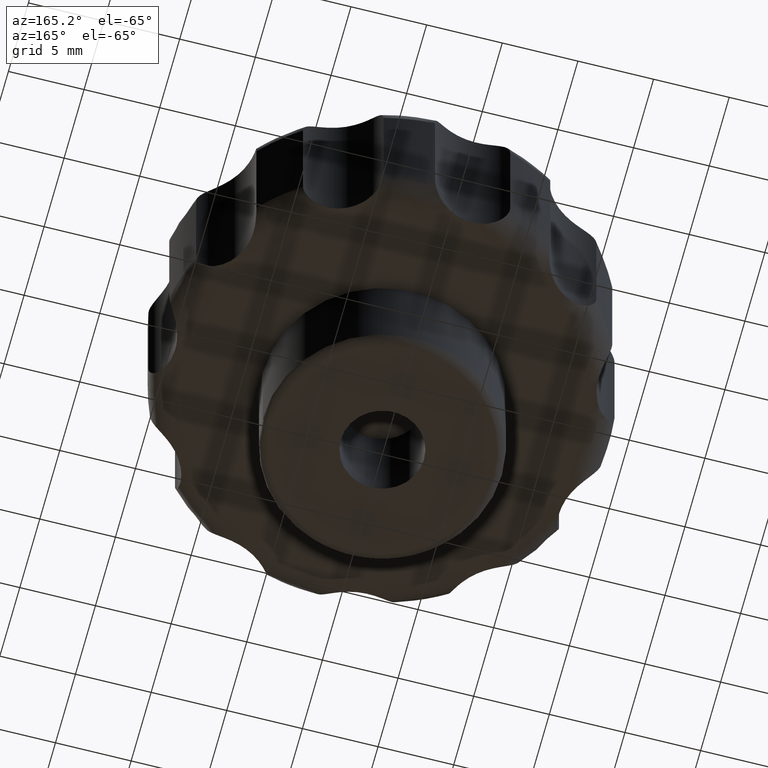
[diagram: clean part render]
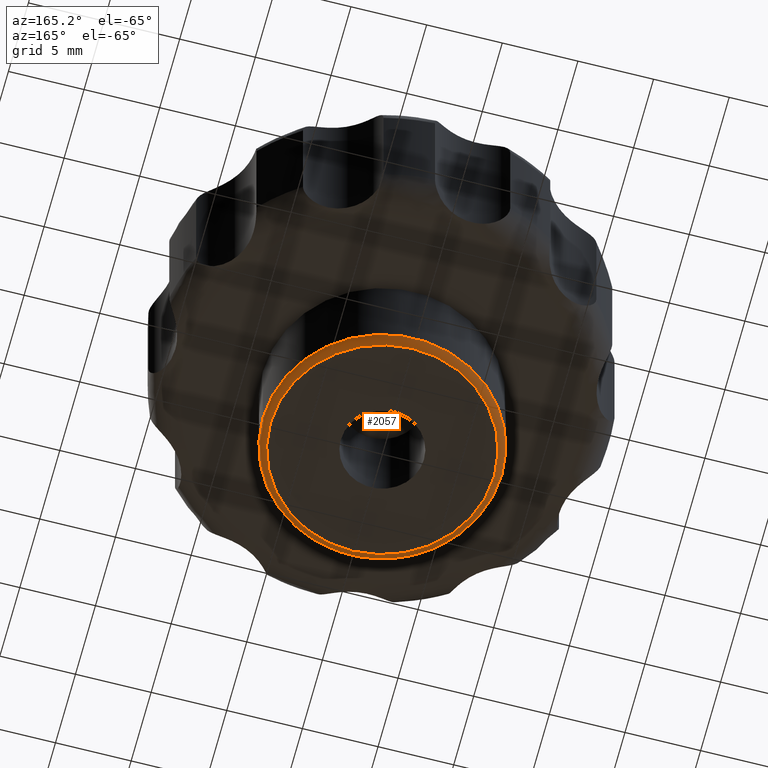
[diagram: same view with one face highlighted and labeled with its STEP entity id]
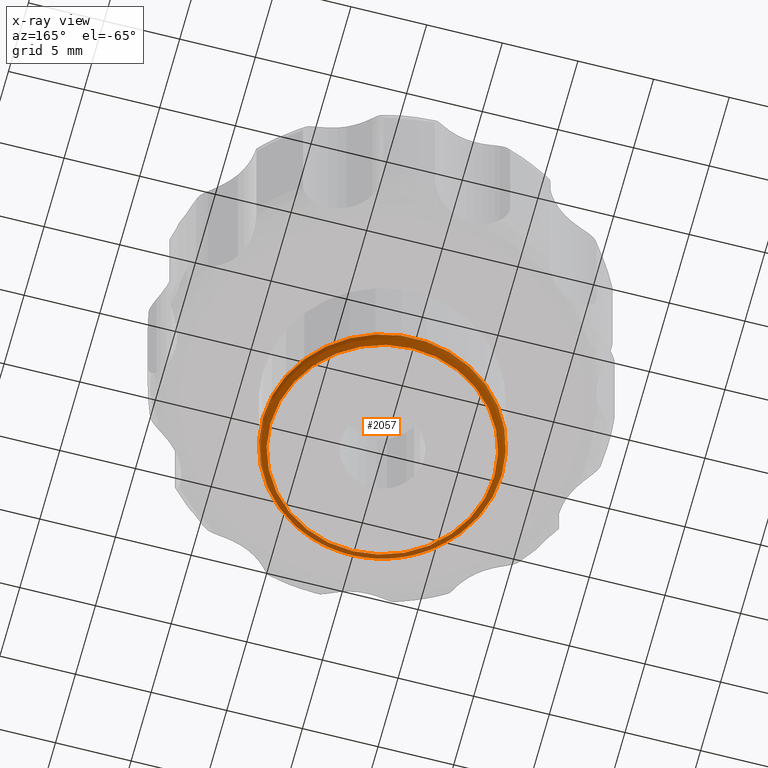
[diagram: x-ray of the same camera — body ghosted, the highlighted face saturated]
A machine part, auxiliary view. The second image highlights one B-rep face of the part: STEP entity #2057.
The next image is the same camera in x-ray: the body ghosted, the highlighted face saturated — about 0% of this face is hidden behind the body in this view.
In plain terms, the highlighted face is a freeform B-spline surface patch.
Its self-contained STEP definition (entity closure, byte-faithful):
#1737=CARTESIAN_POINT('',(7.899999999999999,0.0,-7.0));
#1738=VERTEX_POINT('',#1737);
#1745=CARTESIAN_POINT('',(-7.900000000000000,0.0,-7.0));
#1746=VERTEX_POINT('',#1745);
#1747=CARTESIAN_POINT('',(0.0,0.0,-7.0));
#1748=DIRECTION('',(0.0,0.0,-1.0));
#1749=DIRECTION('',(1.0,0.0,0.0));
#1750=AXIS2_PLACEMENT_3D('',#1747,#1748,#1749);
#1751=CIRCLE('',#1750,7.900000000000000);
#1752=EDGE_CURVE('',#1746,#1738,#1751,.T.);
#1754=CARTESIAN_POINT('',(0.0,0.0,-7.0));
#1755=DIRECTION('',(0.0,0.0,-1.0));
#1756=DIRECTION('',(1.0,0.0,0.0));
#1757=AXIS2_PLACEMENT_3D('',#1754,#1755,#1756);
#1758=CIRCLE('',#1757,7.900000000000000);
#1759=EDGE_CURVE('',#1738,#1746,#1758,.T.);
#1770=CARTESIAN_POINT('',(7.399999999999999,0.0,-7.500000000000000));
#1771=VERTEX_POINT('',#1770);
#1772=CARTESIAN_POINT('',(-7.400000000000000,0.0,-7.500000000000000));
#1773=VERTEX_POINT('',#1772);
#1774=CARTESIAN_POINT('',(0.0,0.0,-7.500000000000000));
#1775=DIRECTION('',(0.0,0.0,-1.0));
#1776=DIRECTION('',(1.0,0.0,0.0));
#1777=AXIS2_PLACEMENT_3D('',#1774,#1775,#1776);
#1778=CIRCLE('',#1777,7.400000000000000);
#1779=EDGE_CURVE('',#1771,#1773,#1778,.T.);
#1781=CARTESIAN_POINT('',(0.0,0.0,-7.500000000000000));
#1782=DIRECTION('',(0.0,0.0,-1.0));
#1783=DIRECTION('',(1.0,0.0,0.0));
#1784=AXIS2_PLACEMENT_3D('',#1781,#1782,#1783);
#1785=CIRCLE('',#1784,7.400000000000000);
#1786=EDGE_CURVE('',#1773,#1771,#1785,.T.);
#1811=CARTESIAN_POINT('',(7.400000000000000,0.0,-7.500000000000000));
#1812=CARTESIAN_POINT('',(7.465030107338710,0.0,-7.500000000000000));
#1813=CARTESIAN_POINT('',(7.596513908671637,0.0,-7.473980611942110));
#1814=CARTESIAN_POINT('',(7.762706455736474,0.0,-7.362706455736474));
#1815=CARTESIAN_POINT('',(7.873980611942111,0.0,-7.196513908671638));
#1816=CARTESIAN_POINT('',(7.900000000000000,0.0,-7.065030107338710));
#1817=CARTESIAN_POINT('',(7.900000000000000,0.0,-7.0));
#1818=CARTESIAN_POINT('',(7.400000000000000,-0.483551225625832,-7.500000000000000));
#1819=CARTESIAN_POINT('',(7.465030107338710,-0.487800602396942,-7.500000000000000));
#1820=CARTESIAN_POINT('',(7.596513908671637,-0.496392379867818,-7.473980611942110));
#1821=CARTESIAN_POINT('',(7.762706455736474,-0.507252192006072,-7.362706455736474));
#1822=CARTESIAN_POINT('',(7.873980611942111,-0.514523375061980,-7.196513908671638));
#1823=CARTESIAN_POINT('',(7.900000000000000,-0.516223605735686,-7.065030107338710));
#1824=CARTESIAN_POINT('',(7.900000000000000,-0.516223605735686,-7.0));
#1825=CARTESIAN_POINT('',(7.304596331744101,-1.453333589229137,-7.500000000000000));
#1826=CARTESIAN_POINT('',(7.368788045733190,-1.466105270216505,-7.500000000000000));
#1827=CARTESIAN_POINT('',(7.498576706935928,-1.491928219529569,-7.473980611942109));
#1828=CARTESIAN_POINT('',(7.662626635267414,-1.524567842628065,-7.362706455736474));
#1829=CARTESIAN_POINT('',(7.772466201921155,-1.546421689766820,-7.196513908671637));
#1830=CARTESIAN_POINT('',(7.798150137943026,-1.551531804717592,-7.065030107338709));
#1831=CARTESIAN_POINT('',(7.798150137943026,-1.551531804717592,-7.0));
#1832=CARTESIAN_POINT('',(6.880779288799079,-2.850015896775366,-7.499999999999998));
#1833=CARTESIAN_POINT('',(6.941246561194291,-2.875061415651627,-7.499999999999998));
#1834=CARTESIAN_POINT('',(7.063504806738100,-2.925700729701263,-7.473980611942110));
#1835=CARTESIAN_POINT('',(7.218036460224115,-2.989707675790500,-7.362706455736472));
#1836=CARTESIAN_POINT('',(7.321503069602264,-3.032563502018384,-7.196513908671637));
#1837=CARTESIAN_POINT('',(7.345696808312531,-3.042584538449377,-7.065030107338709));
#1838=CARTESIAN_POINT('',(7.345696808312531,-3.042584538449377,-7.0));
#1839=CARTESIAN_POINT('',(6.192537756560713,-4.137747220679383,-7.500000000000000));
#1840=CARTESIAN_POINT('',(6.246956863994248,-4.174109132287658,-7.500000000000000));
#1841=CARTESIAN_POINT('',(6.356986378065910,-4.247628961143018,-7.473980611942110));
#1842=CARTESIAN_POINT('',(6.496061191925096,-4.340556359753176,-7.362706455736473));
#1843=CARTESIAN_POINT('',(6.589178680253863,-4.402775863884707,-7.196513908671637));
#1844=CARTESIAN_POINT('',(6.610952469841842,-4.417324735590152,-7.065030107338711));
#1845=CARTESIAN_POINT('',(6.610952469841842,-4.417324735590152,-7.0));
#1846=CARTESIAN_POINT('',(5.266320471191071,-5.266313566577439,-7.500000000000000));
#1847=CARTESIAN_POINT('',(5.312600117883180,-5.312593152592822,-7.500000000000000));
#1848=CARTESIAN_POINT('',(5.406172527962858,-5.406165439990765,-7.473980611942110));
#1849=CARTESIAN_POINT('',(5.524445935093522,-5.524438692054495,-7.362706455736474));
#1850=CARTESIAN_POINT('',(5.603635849517883,-5.603628502653845,-7.196513908671639));
#1851=CARTESIAN_POINT('',(5.622152935460738,-5.622145564319159,-7.065030107338710));
#1852=CARTESIAN_POINT('',(5.622152935460738,-5.622145564319159,-6.999999999999999));
#1853=CARTESIAN_POINT('',(4.137721443357715,-6.192539597693564,-7.500000000000000));
#1854=CARTESIAN_POINT('',(4.174083128438693,-6.246958721306703,-7.500000000000000));
#1855=CARTESIAN_POINT('',(4.247602499280508,-6.356988268091763,-7.473980611942110));
#1856=CARTESIAN_POINT('',(4.340529318971917,-6.496063123299940,-7.362706455736473));
#1857=CARTESIAN_POINT('',(4.402748435488620,-6.589180639313916,-7.196513908671638));
#1858=CARTESIAN_POINT('',(4.417297216557562,-6.610954435375561,-7.065030107338711));
#1859=CARTESIAN_POINT('',(4.417297216557562,-6.610954435375561,-7.0));
#1860=CARTESIAN_POINT('',(2.850112101448407,-6.880778828881310,-7.500000000000001));
#1861=CARTESIAN_POINT('',(2.875158465757129,-6.941246097234831,-7.500000000000001));
#1862=CARTESIAN_POINT('',(2.925799489179214,-7.063504334606784,-7.473980611942110));
#1863=CARTESIAN_POINT('',(2.989808595876513,-7.218035977763758,-7.362706455736474));
#1864=CARTESIAN_POINT('',(3.032665868738695,-7.321502580226100,-7.196513908671637));
#1865=CARTESIAN_POINT('',(3.042687243438164,-7.345696317319236,-7.065030107338710));
#1866=CARTESIAN_POINT('',(3.042687243438164,-7.345696317319236,-7.0));
#1867=CARTESIAN_POINT('',(1.452974547858642,-7.304596330282338,-7.499999999999998));
#1868=CARTESIAN_POINT('',(1.465743073643461,-7.368788044258581,-7.499999999999998));
#1869=CARTESIAN_POINT('',(1.491559643480278,-7.498576705435347,-7.473980611942111));
#1870=CARTESIAN_POINT('',(1.524191203065279,-7.662626633734004,-7.362706455736475));
#1871=CARTESIAN_POINT('',(1.546039651281662,-7.772466200365764,-7.196513908671639));
#1872=CARTESIAN_POINT('',(1.551148503795036,-7.798150136382496,-7.065030107338711));
#1873=CARTESIAN_POINT('',(1.551148503795036,-7.798150136382496,-7.0));
#1874=CARTESIAN_POINT('',(4.633132E-009,-7.447702299892771,-7.500000000000004));
#1875=CARTESIAN_POINT('',(4.673847E-009,-7.513151607999365,-7.500000000000004));
#1876=CARTESIAN_POINT('',(4.756169E-009,-7.645482987673133,-7.473980611942112));
#1877=CARTESIAN_POINT('',(4.860222E-009,-7.812746854565003,-7.362706455736475));
#1878=CARTESIAN_POINT('',(4.929891E-009,-7.924738312550317,-7.196513908671639));
#1879=CARTESIAN_POINT('',(4.946181E-009,-7.950925428263904,-7.065030107338711));
#1880=CARTESIAN_POINT('',(4.946181E-009,-7.950925428263904,-7.0));
#1881=CARTESIAN_POINT('',(-1.452974566391169,-7.304594470146582,-7.500000000000000));
#1882=CARTESIAN_POINT('',(-1.465743092338849,-7.368786167776225,-7.500000000000000));
#1883=CARTESIAN_POINT('',(-1.491559662504954,-7.498574795901949,-7.473980611942110));
#1884=CARTESIAN_POINT('',(-1.524191222506166,-7.662624682424838,-7.362706455736472));
#1885=CARTESIAN_POINT('',(-1.546039671001225,-7.772464221085645,-7.196513908671637));
#1886=CARTESIAN_POINT('',(-1.551148523579762,-7.798148150561893,-7.065030107338710));
#1887=CARTESIAN_POINT('',(-1.551148523579762,-7.798148150561893,-6.999999999999999));
#1888=CARTESIAN_POINT('',(-2.850112036584549,-6.880786269424332,-7.500000000000000));
#1889=CARTESIAN_POINT('',(-2.875158400323256,-6.941253603164249,-7.500000000000000));
#1890=CARTESIAN_POINT('',(-2.925799422592832,-7.063511972740376,-7.473980611942109));
#1891=CARTESIAN_POINT('',(-2.989808527833391,-7.218043783000428,-7.362706455736473));
#1892=CARTESIAN_POINT('',(-3.032665799720213,-7.321510497346575,-7.196513908671636));
#1893=CARTESIAN_POINT('',(-3.042687174191611,-7.345704260601652,-7.065030107338708));
#1894=CARTESIAN_POINT('',(-3.042687174191611,-7.345704260601652,-6.999999999999998));
#1895=CARTESIAN_POINT('',(-4.137721684280619,-6.192511695657219,-7.499999999999999));
#1896=CARTESIAN_POINT('',(-4.174083371478792,-6.246930574071381,-7.499999999999999));
#1897=CARTESIAN_POINT('',(-4.247602746601347,-6.356959625090791,-7.473980611942111));
#1898=CARTESIAN_POINT('',(-4.340529571703508,-6.496033853662420,-7.362706455736474));
#1899=CARTESIAN_POINT('',(-4.402748691842982,-6.589150950112124,-7.196513908671638));
#1900=CARTESIAN_POINT('',(-4.417297473759041,-6.610924648066490,-7.065030107338709));
#1901=CARTESIAN_POINT('',(-4.417297473759041,-6.610924648066490,-7.000000000000001));
#1902=CARTESIAN_POINT('',(-5.266319572363298,-5.266417734179814,-7.500000000000000));
#1903=CARTESIAN_POINT('',(-5.312599211156639,-5.312698235604705,-7.500000000000000));
#1904=CARTESIAN_POINT('',(-5.406171605265875,-5.406272373861073,-7.473980611942110));
#1905=CARTESIAN_POINT('',(-5.524444992210260,-5.524547965367929,-7.362706455736473));
#1906=CARTESIAN_POINT('',(-5.603634893118901,-5.603739342340536,-7.196513908671637));
#1907=CARTESIAN_POINT('',(-5.622151975901359,-5.622256770273045,-7.065030107338710));
#1908=CARTESIAN_POINT('',(-5.622151975901359,-5.622256770273045,-6.999999999999998));
#1909=CARTESIAN_POINT('',(-6.192541110948907,-4.137358452306225,-7.499999999999998));
#1910=CARTESIAN_POINT('',(-6.246960247860311,-4.173716947475440,-7.499999999999998));
#1911=CARTESIAN_POINT('',(-6.356989821533011,-4.247229868662756,-7.473980611942111));
#1912=CARTESIAN_POINT('',(-6.496064710726563,-4.340148536136947,-7.362706455736474));
#1913=CARTESIAN_POINT('',(-6.589182249495432,-4.402362194339736,-7.196513908671639));
#1914=CARTESIAN_POINT('',(-6.610956050877887,-4.416909699083674,-7.065030107338709));
#1915=CARTESIAN_POINT('',(-6.610956050877887,-4.416909699083674,-7.0));
#1916=CARTESIAN_POINT('',(-7.107965993342532,-2.426964199294079,-7.500000000000002));
#1917=CARTESIAN_POINT('',(-7.170429748951581,-2.448292002319388,-7.500000000000002));
#1918=CARTESIAN_POINT('',(-7.296724666323184,-2.491414499430486,-7.473980611942110));
#1919=CARTESIAN_POINT('',(-7.456358581577761,-2.545920359148843,-7.362706455736472));
#1920=CARTESIAN_POINT('',(-7.563241408367961,-2.582414736637727,-7.196513908671636));
#1921=CARTESIAN_POINT('',(-7.588233965865678,-2.590948266813948,-7.065030107338710));
#1922=CARTESIAN_POINT('',(-7.588233965865678,-2.590948266813948,-7.0));
#1923=CARTESIAN_POINT('',(-7.594375837252727,-3.996803E-015,-7.499999999999999));
#1924=CARTESIAN_POINT('',(-7.661114090748274,-4.107825E-015,-7.499999999999999));
#1925=CARTESIAN_POINT('',(-7.796051577752722,-4.107825E-015,-7.473980611942110));
#1926=CARTESIAN_POINT('',(-7.966609505287948,-4.329870E-015,-7.362706455736474));
#1927=CARTESIAN_POINT('',(-8.080806500314814,-4.329870E-015,-7.196513908671639));
#1928=CARTESIAN_POINT('',(-8.107509339769802,-3.885781E-015,-7.065030107338709));
#1929=CARTESIAN_POINT('',(-8.107509339769802,-3.885781E-015,-6.999999999999999));
#1930=CARTESIAN_POINT('',(-7.107965993342531,2.426964199294080,-7.499999999999999));
#1931=CARTESIAN_POINT('',(-7.170429748951579,2.448292002319390,-7.499999999999999));
#1932=CARTESIAN_POINT('',(-7.296724666323183,2.491414499430487,-7.473980611942110));
#1933=CARTESIAN_POINT('',(-7.456358581577756,2.545920359148845,-7.362706455736475));
#1934=CARTESIAN_POINT('',(-7.563241408367963,2.582414736637729,-7.196513908671638));
#1935=CARTESIAN_POINT('',(-7.588233965865677,2.590948266813949,-7.065030107338710));
#1936=CARTESIAN_POINT('',(-7.588233965865677,2.590948266813949,-7.0));
#1937=CARTESIAN_POINT('',(-6.192541110948911,4.137358452306219,-7.500000000000001));
#1938=CARTESIAN_POINT('',(-6.246960247860314,4.173716947475434,-7.500000000000001));
#1939=CARTESIAN_POINT('',(-6.356989821533016,4.247229868662751,-7.473980611942110));
#1940=CARTESIAN_POINT('',(-6.496064710726571,4.340148536136940,-7.362706455736472));
#1941=CARTESIAN_POINT('',(-6.589182249495432,4.402362194339730,-7.196513908671638));
#1942=CARTESIAN_POINT('',(-6.610956050877890,4.416909699083668,-7.065030107338711));
#1943=CARTESIAN_POINT('',(-6.610956050877890,4.416909699083668,-6.999999999999999));
#1944=CARTESIAN_POINT('',(-5.266319572363294,5.266417734179820,-7.500000000000000));
#1945=CARTESIAN_POINT('',(-5.312599211156636,5.312698235604711,-7.500000000000000));
#1946=CARTESIAN_POINT('',(-5.406171605265873,5.406272373861079,-7.473980611942112));
#1947=CARTESIAN_POINT('',(-5.524444992210252,5.524547965367939,-7.362706455736474));
#1948=CARTESIAN_POINT('',(-5.603634893118900,5.603739342340541,-7.196513908671638));
#1949=CARTESIAN_POINT('',(-5.622151975901356,5.622256770273052,-7.065030107338709));
#1950=CARTESIAN_POINT('',(-5.622151975901356,5.622256770273052,-7.000000000000001));
#1951=CARTESIAN_POINT('',(-4.137721684280629,6.192511695657212,-7.500000000000003));
#1952=CARTESIAN_POINT('',(-4.174083371478800,6.246930574071374,-7.500000000000003));
#1953=CARTESIAN_POINT('',(-4.247602746601353,6.356959625090786,-7.473980611942111));
#1954=CARTESIAN_POINT('',(-4.340529571703518,6.496033853662411,-7.362706455736475));
#1955=CARTESIAN_POINT('',(-4.402748691842990,6.589150950112119,-7.196513908671641));
#1956=CARTESIAN_POINT('',(-4.417297473759049,6.610924648066483,-7.065030107338711));
#1957=CARTESIAN_POINT('',(-4.417297473759049,6.610924648066483,-7.000000000000002));
#1958=CARTESIAN_POINT('',(-2.850112036584549,6.880786269424334,-7.499999999999999));
#1959=CARTESIAN_POINT('',(-2.875158400323258,6.941253603164251,-7.499999999999999));
#1960=CARTESIAN_POINT('',(-2.925799422592836,7.063511972740374,-7.473980611942110));
#1961=CARTESIAN_POINT('',(-2.989808527833393,7.218043783000431,-7.362706455736475));
#1962=CARTESIAN_POINT('',(-3.032665799720217,7.321510497346576,-7.196513908671636));
#1963=CARTESIAN_POINT('',(-3.042687174191614,7.345704260601654,-7.065030107338709));
#1964=CARTESIAN_POINT('',(-3.042687174191614,7.345704260601654,-6.999999999999999));
#1965=CARTESIAN_POINT('',(-1.452974566391168,7.304594470146582,-7.499999999999998));
#1966=CARTESIAN_POINT('',(-1.465743092338848,7.368786167776226,-7.499999999999998));
#1967=CARTESIAN_POINT('',(-1.491559662504953,7.498574795901948,-7.473980611942110));
#1968=CARTESIAN_POINT('',(-1.524191222506166,7.662624682424839,-7.362706455736473));
#1969=CARTESIAN_POINT('',(-1.546039671001224,7.772464221085643,-7.196513908671639));
#1970=CARTESIAN_POINT('',(-1.551148523579761,7.798148150561890,-7.065030107338711));
#1971=CARTESIAN_POINT('',(-1.551148523579761,7.798148150561890,-6.999999999999999));
#1972=CARTESIAN_POINT('',(4.633127E-009,7.447702299892771,-7.500000000000000));
#1973=CARTESIAN_POINT('',(4.673842E-009,7.513151607999365,-7.500000000000000));
#1974=CARTESIAN_POINT('',(4.756164E-009,7.645482987673133,-7.473980611942111));
#1975=CARTESIAN_POINT('',(4.860217E-009,7.812746854565001,-7.362706455736475));
#1976=CARTESIAN_POINT('',(4.929885E-009,7.924738312550316,-7.196513908671638));
#1977=CARTESIAN_POINT('',(4.946176E-009,7.950925428263906,-7.065030107338710));
#1978=CARTESIAN_POINT('',(4.946176E-009,7.950925428263906,-7.000000000000002));
#1979=CARTESIAN_POINT('',(1.452974547858639,7.304596330282339,-7.500000000000002));
#1980=CARTESIAN_POINT('',(1.465743073643458,7.368788044258583,-7.500000000000002));
#1981=CARTESIAN_POINT('',(1.491559643480275,7.498576705435350,-7.473980611942110));
#1982=CARTESIAN_POINT('',(1.524191203065276,7.662626633734008,-7.362706455736474));
#1983=CARTESIAN_POINT('',(1.546039651281659,7.772466200365765,-7.196513908671639));
#1984=CARTESIAN_POINT('',(1.551148503795034,7.798150136382498,-7.065030107338711));
#1985=CARTESIAN_POINT('',(1.551148503795034,7.798150136382498,-6.999999999999999));
#1986=CARTESIAN_POINT('',(2.850112101448412,6.880778828881306,-7.500000000000000));
#1987=CARTESIAN_POINT('',(2.875158465757134,6.941246097234830,-7.500000000000000));
#1988=CARTESIAN_POINT('',(2.925799489179219,7.063504334606779,-7.473980611942110));
#1989=CARTESIAN_POINT('',(2.989808595876517,7.218035977763753,-7.362706455736474));
#1990=CARTESIAN_POINT('',(3.032665868738701,7.321502580226102,-7.196513908671638));
#1991=CARTESIAN_POINT('',(3.042687243438169,7.345696317319231,-7.065030107338709));
#1992=CARTESIAN_POINT('',(3.042687243438169,7.345696317319231,-6.999999999999999));
#1993=CARTESIAN_POINT('',(4.137721443357711,6.192539597693569,-7.500000000000002));
#1994=CARTESIAN_POINT('',(4.174083128438688,6.246958721306706,-7.500000000000002));
#1995=CARTESIAN_POINT('',(4.247602499280503,6.356988268091765,-7.473980611942112));
#1996=CARTESIAN_POINT('',(4.340529318971911,6.496063123299947,-7.362706455736475));
#1997=CARTESIAN_POINT('',(4.402748435488617,6.589180639313914,-7.196513908671640));
#1998=CARTESIAN_POINT('',(4.417297216557557,6.610954435375567,-7.065030107338711));
#1999=CARTESIAN_POINT('',(4.417297216557557,6.610954435375567,-7.000000000000002));
#2000=CARTESIAN_POINT('',(5.266320471191071,5.266313566577438,-7.499999999999998));
#2001=CARTESIAN_POINT('',(5.312600117883179,5.312593152592820,-7.499999999999998));
#2002=CARTESIAN_POINT('',(5.406172527962857,5.406165439990767,-7.473980611942109));
#2003=CARTESIAN_POINT('',(5.524445935093524,5.524438692054489,-7.362706455736473));
#2004=CARTESIAN_POINT('',(5.603635849517881,5.603628502653848,-7.196513908671637));
#2005=CARTESIAN_POINT('',(5.622152935460738,5.622145564319157,-7.065030107338708));
#2006=CARTESIAN_POINT('',(5.622152935460738,5.622145564319157,-6.999999999999997));
#2007=CARTESIAN_POINT('',(6.192537756560711,4.137747220679388,-7.500000000000001));
#2008=CARTESIAN_POINT('',(6.246956863994244,4.174109132287661,-7.500000000000001));
#2009=CARTESIAN_POINT('',(6.356986378065907,4.247628961143022,-7.473980611942110));
#2010=CARTESIAN_POINT('',(6.496061191925092,4.340556359753180,-7.362706455736475));
#2011=CARTESIAN_POINT('',(6.589178680253862,4.402775863884710,-7.196513908671639));
#2012=CARTESIAN_POINT('',(6.610952469841839,4.417324735590157,-7.065030107338711));
#2013=CARTESIAN_POINT('',(6.610952469841839,4.417324735590157,-7.0));
#2014=CARTESIAN_POINT('',(6.880779288799078,2.850015896775373,-7.499999999999998));
#2015=CARTESIAN_POINT('',(6.941246561194291,2.875061415651634,-7.499999999999998));
#2016=CARTESIAN_POINT('',(7.063504806738096,2.925700729701270,-7.473980611942109));
#2017=CARTESIAN_POINT('',(7.218036460224113,2.989707675790508,-7.362706455736473));
#2018=CARTESIAN_POINT('',(7.321503069602260,3.032563502018392,-7.196513908671636));
#2019=CARTESIAN_POINT('',(7.345696808312528,3.042584538449385,-7.065030107338707));
#2020=CARTESIAN_POINT('',(7.345696808312528,3.042584538449385,-7.0));
#2021=CARTESIAN_POINT('',(7.304596331744101,1.453333589229132,-7.500000000000000));
#2022=CARTESIAN_POINT('',(7.368788045733188,1.466105270216499,-7.500000000000000));
#2023=CARTESIAN_POINT('',(7.498576706935928,1.491928219529564,-7.473980611942110));
#2024=CARTESIAN_POINT('',(7.662626635267418,1.524567842628059,-7.362706455736472));
#2025=CARTESIAN_POINT('',(7.772466201921153,1.546421689766815,-7.196513908671637));
#2026=CARTESIAN_POINT('',(7.798150137943026,1.551531804717586,-7.065030107338710));
#2027=CARTESIAN_POINT('',(7.798150137943026,1.551531804717586,-7.0));
#2028=CARTESIAN_POINT('',(7.400000000000000,0.483551225625835,-7.500000000000000));
#2029=CARTESIAN_POINT('',(7.465030107338710,0.487800602396945,-7.500000000000000));
#2030=CARTESIAN_POINT('',(7.596513908671637,0.496392379867821,-7.473980611942110));
#2031=CARTESIAN_POINT('',(7.762706455736474,0.507252192006074,-7.362706455736474));
#2032=CARTESIAN_POINT('',(7.873980611942111,0.514523375061982,-7.196513908671638));
#2033=CARTESIAN_POINT('',(7.900000000000000,0.516223605735688,-7.065030107338710));
#2034=CARTESIAN_POINT('',(7.900000000000000,0.516223605735688,-7.0));
#2035=CARTESIAN_POINT('',(7.400000000000000,1.812477E-015,-7.500000000000000));
#2036=CARTESIAN_POINT('',(7.465030107338710,1.828405E-015,-7.500000000000000));
#2037=CARTESIAN_POINT('',(7.596513908671637,1.860609E-015,-7.473980611942110));
#2038=CARTESIAN_POINT('',(7.762706455736474,1.901315E-015,-7.362706455736474));
#2039=CARTESIAN_POINT('',(7.873980611942111,1.928569E-015,-7.196513908671638));
#2040=CARTESIAN_POINT('',(7.900000000000000,1.934942E-015,-7.065030107338710));
#2041=CARTESIAN_POINT('',(7.900000000000000,1.934942E-015,-7.0));
#2042=B_SPLINE_SURFACE_WITH_KNOTS('',3,3,((#1811,#1818,#1825,#1832,#1839,#1846,#1853,#1860,#1867,#1874,#1881,#1888,#1895,#1902,#1909,#1916,#1923,#1930,#1937,#1944,#1951,#1958,#1965,#1972,#1979,#1986,#1993,#2000,#2007,#2014,#2021,#2028,#2035),(#1812,#1819,#1826,#1833,#1840,#1847,#1854,#1861,#1868,#1875,#1882,#1889,#1896,#1903,#1910,#1917,#1924,#1931,#1938,#1945,#1952,#1959,#1966,#1973,#1980,#1987,#1994,#2001,#2008,#2015,#2022,#2029,#2036),(#1813,#1820,#1827,#1834,#1841,#1848,#1855,#1862,#1869,#1876,#1883,#1890,#1897,#1904,#1911,#1918,#1925,#1932,#1939,#1946,#1953,#1960,#1967,#1974,#1981,#1988,#1995,#2002,#2009,#2016,#2023,#2030,#2037),(#1814,#1821,#1828,#1835,#1842,#1849,#1856,#1863,#1870,#1877,#1884,#1891,#1898,#1905,#1912,#1919,#1926,#1933,#1940,#1947,#1954,#1961,#1968,#1975,#1982,#1989,#1996,#2003,#2010,#2017,#2024,#2031,#2038),(#1815,#1822,#1829,#1836,#1843,#1850,#1857,#1864,#1871,#1878,#1885,#1892,#1899,#1906,#1913,#1920,#1927,#1934,#1941,#1948,#1955,#1962,#1969,#1976,#1983,#1990,#1997,#2004,#2011,#2018,#2025,#2032,#2039),(#1816,#1823,#1830,#1837,#1844,#1851,#1858,#1865,#1872,#1879,#1886,#1893,#1900,#1907,#1914,#1921,#1928,#1935,#1942,#1949,#1956,#1963,#1970,#1977,#1984,#1991,#1998,#2005,#2012,#2019,#2026,#2033,#2040),(#1817,#1824,#1831,#1838,#1845,#1852,#1859,#1866,#1873,#1880,#1887,#1894,#1901,#1908,#1915,#1922,#1929,#1936,#1943,#1950,#1957,#1964,#1971,#1978,#1985,#1992,#1999,#2006,#2013,#2020,#2027,#2034,#2041)),.UNSPECIFIED.,.F.,.T.,.U.,(4,1,1,1,4),(4,1,1,1,1,1,1,1,1,1,1,1,1,1,1,1,1,1,1,1,1,1,1,1,1,1,1,1,1,1,4),(0.0,0.195090322016128,0.390180644032257,0.585270966048385,0.780361288064513),(0.0,1.509731934958857,3.019463869917714,4.529195804876570,6.038927739835428,7.548659674794284,9.058391609753141,10.568123544712000,12.077855479670855,13.587587414629713,15.097319349588570,16.607051284547428,18.116783219506281,19.626515154465146,21.136247089424000,24.141171415504637,27.146095741585270,28.655827676544124,30.165559611502982,31.675291546461843,33.185023481420693,34.694755416379550,36.204487351338415,37.714219286297272,39.223951221256129,40.733683156214987,42.243415091173844,43.753147026132709,45.262878961091559,46.772610896050409,48.282342831009274),.UNSPECIFIED.);
#2043=ORIENTED_EDGE('',*,*,#1786,.F.);
#2044=ORIENTED_EDGE('',*,*,#1779,.F.);
#2045=CARTESIAN_POINT('',(7.399999999999999,0.0,-7.0));
#2046=DIRECTION('',(0.0,-1.0,0.0));
#2047=DIRECTION('',(0.0,0.0,-1.0));
#2048=AXIS2_PLACEMENT_3D('',#2045,#2046,#2047);
#2049=CIRCLE('',#2048,0.500000000000000);
#2050=EDGE_CURVE('',#1771,#1738,#2049,.T.);
#2051=ORIENTED_EDGE('',*,*,#2050,.T.);
#2052=ORIENTED_EDGE('',*,*,#1759,.T.);
#2053=ORIENTED_EDGE('',*,*,#1752,.T.);
#2054=ORIENTED_EDGE('',*,*,#2050,.F.);
#2055=EDGE_LOOP('',(#2043,#2044,#2051,#2052,#2053,#2054));
#2056=FACE_OUTER_BOUND('',#2055,.T.);
#2057=ADVANCED_FACE('',(#2056),#2042,.T.);